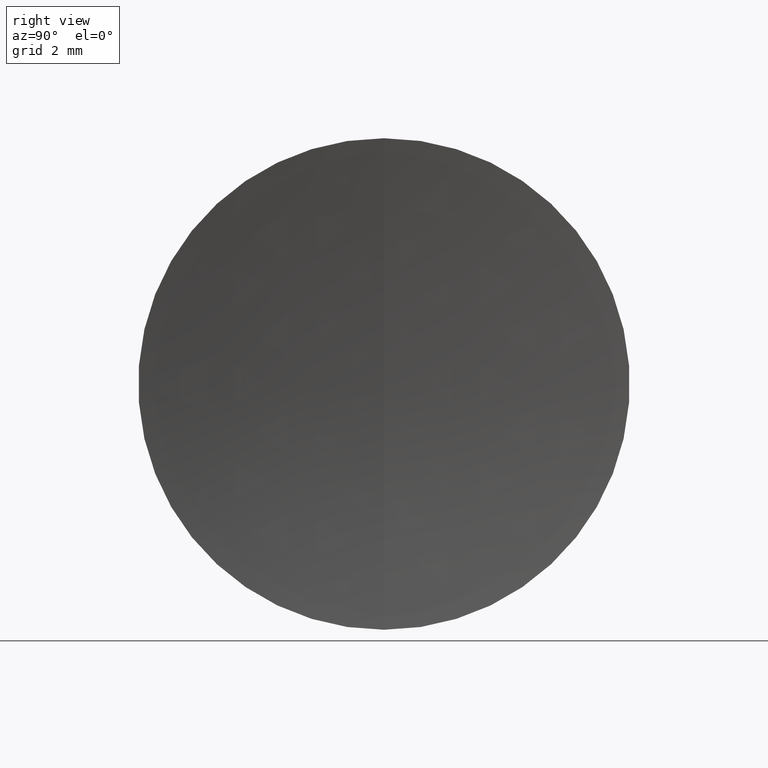
[diagram: clean part render]
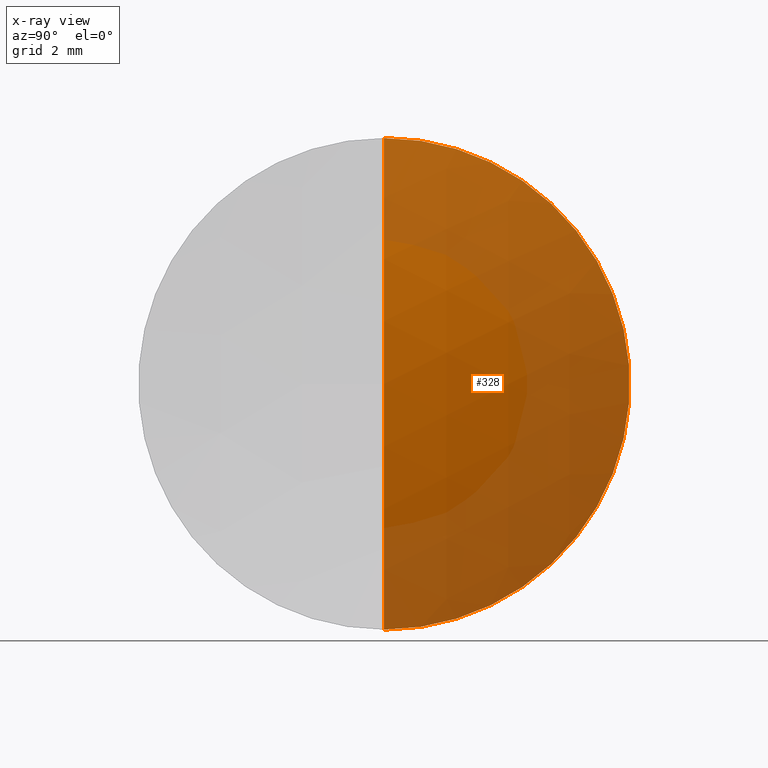
[diagram: x-ray — body ghosted, one internal face saturated and labeled with its STEP entity id]
A machine part, right view, then the same camera in x-ray: the body is ghosted and one INTERNAL B-rep face — a face not visible from any outside direction — is saturated and labeled: STEP entity #328.
In plain terms, the highlighted spherical surface has radius 18.41 mm.
Its self-contained STEP definition (entity closure, byte-faithful):
#4 = EDGE_CURVE ( 'NONE', #327, #241, #297, .T. ) ;
#8 = EDGE_CURVE ( 'NONE', #274, #241, #77, .T. ) ;
#9 = SPHERICAL_SURFACE ( 'NONE', #329, 18.40999999999999700 ) ;
#39 = DIRECTION ( 'NONE',  ( 0.0000000000000000000, 0.0000000000000000000, -1.000000000000000000 ) ) ;
#61 = DIRECTION ( 'NONE',  ( 0.0000000000000000000, -1.000000000000000000, 0.0000000000000000000 ) ) ;
#77 = CIRCLE ( 'NONE', #187, 18.40999999999999700 ) ;
#79 = ORIENTED_EDGE ( 'NONE', *, *, #8, .T. ) ;
#83 = CARTESIAN_POINT ( 'NONE',  ( 11.46197047241490300, 0.0000000000000000000, 2.106783712148525000E-015 ) ) ;
#90 = CIRCLE ( 'NONE', #272, 18.40999999999999700 ) ;
#96 = CARTESIAN_POINT ( 'NONE',  ( 28.74217880449237900, 7.776507174585701000E-016, -6.350000000000006800 ) ) ;
#101 = ORIENTED_EDGE ( 'NONE', *, *, #248, .F. ) ;
#111 = DIRECTION ( 'NONE',  ( 0.0000000000000000000, 0.0000000000000000000, 1.000000000000000000 ) ) ;
#120 = DIRECTION ( 'NONE',  ( 0.0000000000000000000, 1.000000000000000000, 0.0000000000000000000 ) ) ;
#142 = DIRECTION ( 'NONE',  ( -0.0000000000000000000, 1.000000000000000000, 1.224646799147353200E-016 ) ) ;
#165 = AXIS2_PLACEMENT_3D ( 'NONE', #221, #305, #111 ) ;
#175 = EDGE_LOOP ( 'NONE', ( #101, #79, #192 ) ) ;
#177 = CARTESIAN_POINT ( 'NONE',  ( 29.87197047241489800, 0.0000000000000000000, 3.234071090763663400E-015 ) ) ;
#187 = AXIS2_PLACEMENT_3D ( 'NONE', #331, #142, #304 ) ;
#192 = ORIENTED_EDGE ( 'NONE', *, *, #4, .F. ) ;
#203 = CARTESIAN_POINT ( 'NONE',  ( 11.46197047241490300, 0.0000000000000000000, 2.106783712148525000E-015 ) ) ;
#206 = DIRECTION ( 'NONE',  ( 0.0000000000000000000, 0.0000000000000000000, 1.000000000000000000 ) ) ;
#221 = CARTESIAN_POINT ( 'NONE',  ( 28.74217880449237900, 0.0000000000000000000, 0.0000000000000000000 ) ) ;
#241 = VERTEX_POINT ( 'NONE', #96 ) ;
#248 = EDGE_CURVE ( 'NONE', #274, #327, #90, .T. ) ;
#272 = AXIS2_PLACEMENT_3D ( 'NONE', #83, #61, #39 ) ;
#274 = VERTEX_POINT ( 'NONE', #177 ) ;
#297 = CIRCLE ( 'NONE', #165, 6.350000000000006800 ) ;
#304 = DIRECTION ( 'NONE',  ( 0.0000000000000000000, -1.224646799147353200E-016, 1.000000000000000000 ) ) ;
#305 = DIRECTION ( 'NONE',  ( -1.000000000000000000, -0.0000000000000000000, -0.0000000000000000000 ) ) ;
#314 = CARTESIAN_POINT ( 'NONE',  ( 28.74217880449237900, 0.0000000000000000000, 6.350000000000006800 ) ) ;
#327 = VERTEX_POINT ( 'NONE', #314 ) ;
#328 = ADVANCED_FACE ( 'NONE', ( #346 ), #9, .T. ) ;
#329 = AXIS2_PLACEMENT_3D ( 'NONE', #203, #120, #206 ) ;
#331 = CARTESIAN_POINT ( 'NONE',  ( 11.46197047241490300, 0.0000000000000000000, 2.106783712148525000E-015 ) ) ;
#346 = FACE_OUTER_BOUND ( 'NONE', #175, .T. ) ;